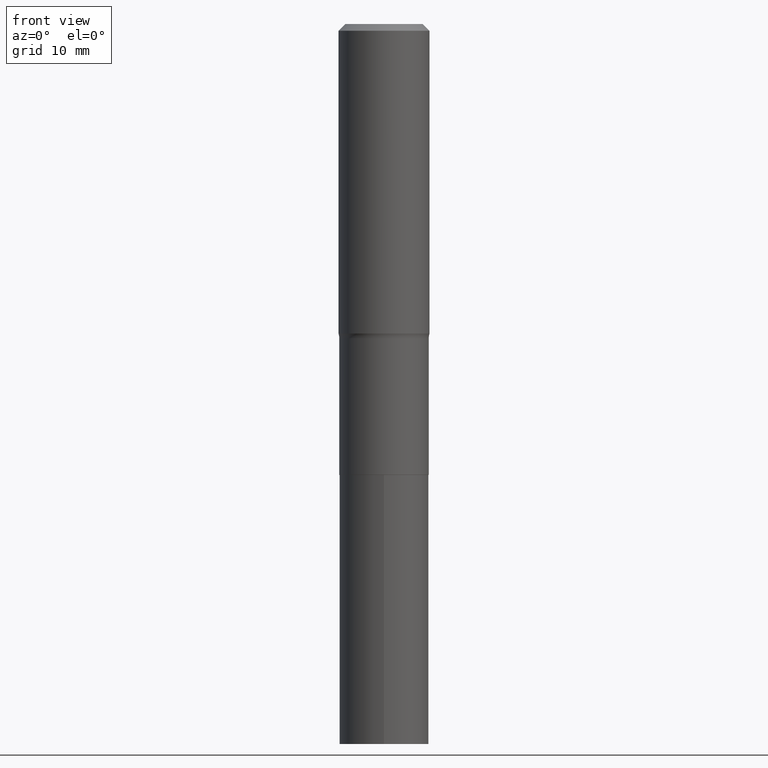
[diagram: clean part render]
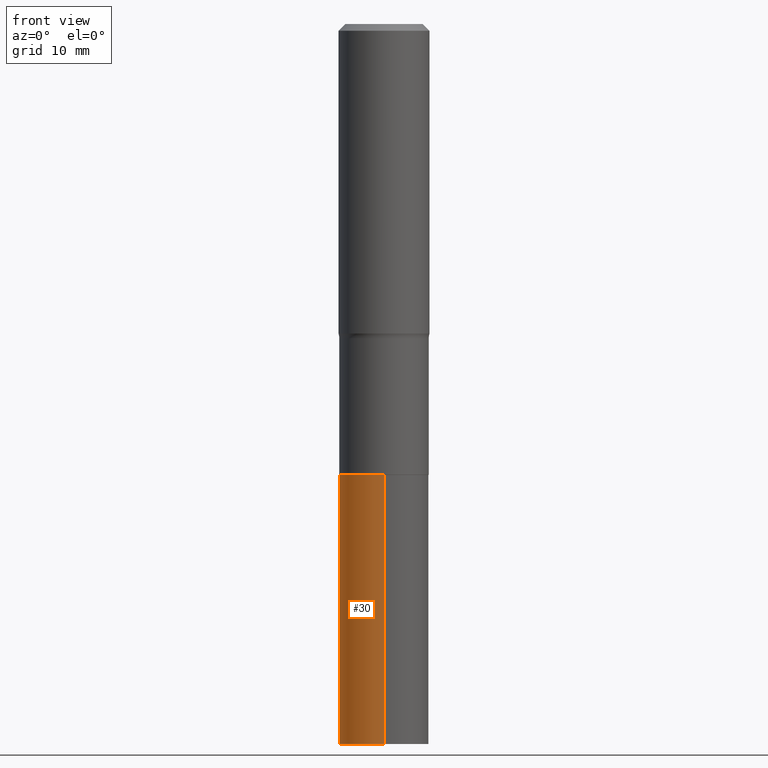
[diagram: same view with one face highlighted and labeled with its STEP entity id]
A machine part, front view. The second image highlights one B-rep face of the part: STEP entity #30.
In plain terms, the highlighted cylindrical surface (partial cylindrical patch) has radius 5.9004 mm, axis along (-0, 0, 1).
Its self-contained STEP definition (entity closure, byte-faithful):
#2 = VECTOR ( 'NONE', #244, 39.37007874015748143 ) ;
#8 = DIRECTION ( 'NONE',  ( -2.445460196475928027E-29, 3.491493668436766401E-15, 1.000000000000000000 ) ) ;
#16 = ORIENTED_EDGE ( 'NONE', *, *, #302, .T. ) ;
#23 = VERTEX_POINT ( 'NONE', #140 ) ;
#27 = VERTEX_POINT ( 'NONE', #426 ) ;
#30 = ADVANCED_FACE ( 'NONE', ( #31 ), #255, .T. ) ;
#31 = FACE_OUTER_BOUND ( 'NONE', #448, .T. ) ;
#37 = DIRECTION ( 'NONE',  ( -6.982962677686265922E-15, -1.000000000000000000, 3.527999991817817286E-15 ) ) ;
#45 = ORIENTED_EDGE ( 'NONE', *, *, #318, .F. ) ;
#56 = CIRCLE ( 'NONE', #372, 0.2323000000000000065 ) ;
#62 = CARTESIAN_POINT ( 'NONE',  ( -1.622142230026462497E-15, -0.2323000000000081666, -2.342199999999999616 ) ) ;
#80 = DIRECTION ( 'NONE',  ( -2.445460196475928027E-29, 3.491493668436766401E-15, 1.000000000000000000 ) ) ;
#91 = LINE ( 'NONE', #225, #113 ) ;
#105 = ORIENTED_EDGE ( 'NONE', *, *, #342, .F. ) ;
#113 = VECTOR ( 'NONE', #8, 39.37007874015748143 ) ;
#140 = CARTESIAN_POINT ( 'NONE',  ( 1.650590775170804286E-15, 0.2322999999999918463, -2.342200000000000948 ) ) ;
#162 = AXIS2_PLACEMENT_3D ( 'NONE', #468, #187, #325 ) ;
#163 = LINE ( 'NONE', #415, #2 ) ;
#187 = DIRECTION ( 'NONE',  ( -2.445460196475928027E-29, 3.491493668436766401E-15, 1.000000000000000000 ) ) ;
#191 = CARTESIAN_POINT ( 'NONE',  ( 5.727777037846827784E-29, -8.177747591838416328E-15, -2.342200000000000060 ) ) ;
#209 = VERTEX_POINT ( 'NONE', #62 ) ;
#220 = EDGE_CURVE ( 'NONE', #27, #275, #436, .T. ) ;
#225 = CARTESIAN_POINT ( 'NONE',  ( 1.650590775170769773E-15, 0.2322999999999918463, -2.342200000000000948 ) ) ;
#228 = DIRECTION ( 'NONE',  ( -6.982962677686265922E-15, -1.000000000000000000, 2.351999994545211393E-15 ) ) ;
#244 = DIRECTION ( 'NONE',  ( -2.445460196475928027E-29, 3.491493668436766401E-15, 1.000000000000000000 ) ) ;
#255 = CYLINDRICAL_SURFACE ( 'NONE', #162, 0.2323000000000000065 ) ;
#275 = VERTEX_POINT ( 'NONE', #362 ) ;
#302 = EDGE_CURVE ( 'NONE', #275, #209, #163, .T. ) ;
#313 = CARTESIAN_POINT ( 'NONE',  ( 9.146530392520179106E-29, -1.305885574031301935E-14, -3.740200000000001079 ) ) ;
#318 = EDGE_CURVE ( 'NONE', #27, #23, #91, .T. ) ;
#325 = DIRECTION ( 'NONE',  ( -6.982962677686265922E-15, -1.000000000000000000, 3.527999991817817286E-15 ) ) ;
#342 = EDGE_CURVE ( 'NONE', #23, #209, #56, .T. ) ;
#361 = AXIS2_PLACEMENT_3D ( 'NONE', #313, #460, #228 ) ;
#362 = CARTESIAN_POINT ( 'NONE',  ( -1.622142230026428181E-15, -0.2323000000000130516, -3.740200000000000635 ) ) ;
#372 = AXIS2_PLACEMENT_3D ( 'NONE', #191, #80, #37 ) ;
#415 = CARTESIAN_POINT ( 'NONE',  ( -1.622142230026462497E-15, -0.2323000000000081666, -2.342199999999999616 ) ) ;
#426 = CARTESIAN_POINT ( 'NONE',  ( 1.650590775170786931E-15, 0.2322999999999869614, -3.740200000000001967 ) ) ;
#436 = CIRCLE ( 'NONE', #361, 0.2323000000000000065 ) ;
#443 = ORIENTED_EDGE ( 'NONE', *, *, #220, .T. ) ;
#448 = EDGE_LOOP ( 'NONE', ( #45, #443, #16, #105 ) ) ;
#460 = DIRECTION ( 'NONE',  ( -2.445460196475928027E-29, 3.491493668436766401E-15, 1.000000000000000000 ) ) ;
#468 = CARTESIAN_POINT ( 'NONE',  ( 5.727777037846827784E-29, -8.177747591838416328E-15, -2.342200000000000060 ) ) ;